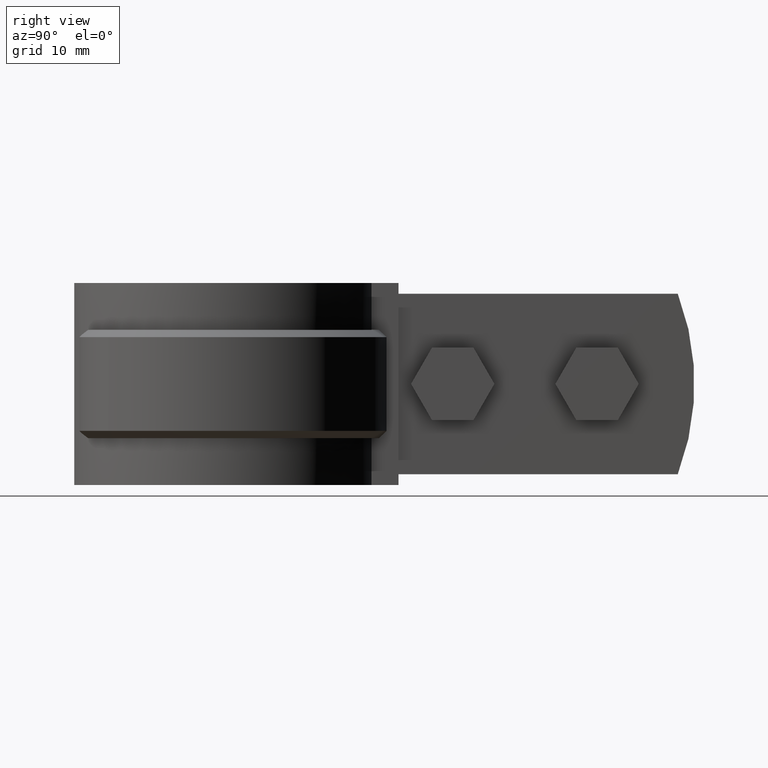
[diagram: clean part render]
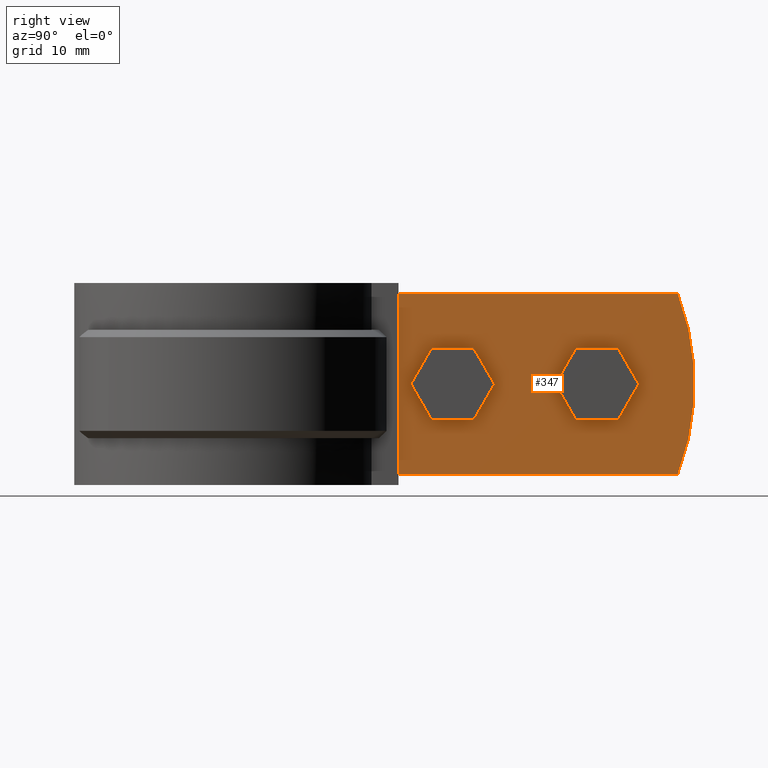
[diagram: same view with one face highlighted and labeled with its STEP entity id]
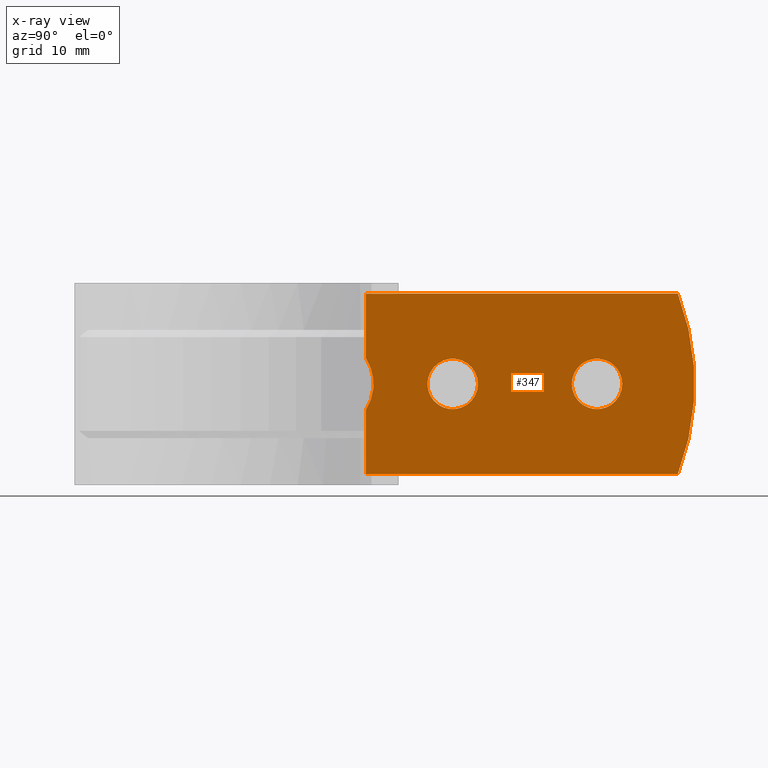
[diagram: x-ray of the same camera — body ghosted, the highlighted face saturated]
A machine part, right view. The second image highlights one B-rep face of the part: STEP entity #347.
The next image is the same camera in x-ray: the body ghosted, the highlighted face saturated — about 0% of this face is hidden behind the body in this view.
In plain terms, the highlighted planar face has unit normal (-1, 0, 0).
Its self-contained STEP definition (entity closure, byte-faithful):
#347 = ADVANCED_FACE( '', ( #577, #578, #579 ), #580, .F. );
#577 = FACE_BOUND( '', #1183, .T. );
#578 = FACE_BOUND( '', #1184, .T. );
#579 = FACE_OUTER_BOUND( '', #1185, .T. );
#580 = PLANE( '', #1186 );
#1183 = EDGE_LOOP( '', ( #2356 ) );
#1184 = EDGE_LOOP( '', ( #2357 ) );
#1185 = EDGE_LOOP( '', ( #2358, #2359, #2360, #2361, #2362, #2363 ) );
#1186 = AXIS2_PLACEMENT_3D( '', #2364, #2365, #2366 );
#2356 = ORIENTED_EDGE( '', *, *, #4100, .F. );
#2357 = ORIENTED_EDGE( '', *, *, #4101, .F. );
#2358 = ORIENTED_EDGE( '', *, *, #4016, .F. );
#2359 = ORIENTED_EDGE( '', *, *, #4099, .T. );
#2360 = ORIENTED_EDGE( '', *, *, #4102, .T. );
#2361 = ORIENTED_EDGE( '', *, *, #4103, .F. );
#2362 = ORIENTED_EDGE( '', *, *, #3996, .F. );
#2363 = ORIENTED_EDGE( '', *, *, #4079, .T. );
#2364 = CARTESIAN_POINT( '', ( 5.10000000000000, 19.4422220952236, 0.000000000000000 ) );
#2365 = DIRECTION( '', ( -1.00000000000000, 6.12303176911189E-017, 0.000000000000000 ) );
#2366 = DIRECTION( '', ( 6.12303176911189E-017, 1.00000000000000, 0.000000000000000 ) );
#3996 = EDGE_CURVE( '', #4520, #4522, #4523, .T. );
#4016 = EDGE_CURVE( '', #4557, #4551, #4559, .T. );
#4079 = EDGE_CURVE( '', #4520, #4551, #4665, .T. );
#4099 = EDGE_CURVE( '', #4557, #4693, #4695, .T. );
#4100 = EDGE_CURVE( '', #4696, #4696, #4697, .F. );
#4101 = EDGE_CURVE( '', #4698, #4698, #4699, .F. );
#4102 = EDGE_CURVE( '', #4693, #4700, #4701, .T. );
#4103 = EDGE_CURVE( '', #4522, #4700, #4702, .T. );
#4520 = VERTEX_POINT( '', #5493 );
#4522 = VERTEX_POINT( '', #5495 );
#4523 = LINE( '', #5496, #5497 );
#4551 = VERTEX_POINT( '', #5600 );
#4557 = VERTEX_POINT( '', #5665 );
#4559 = B_SPLINE_CURVE_WITH_KNOTS( '', 3, ( #5680, #5681, #5682, #5683, #5684, #5685, #5686, #5687, #5688, #5689, #5690, #5691, #5692, #5693, #5694, #5695 ), .UNSPECIFIED., .F., .F., ( 4, 2, 2, 2, 2, 2, 2, 4 ), ( 1.55158384577955E-017, 0.00184726520239941, 0.00277089780359910, 0.00369453040479880, 0.00461816300599849, 0.00554179560719819, 0.00646542820839788, 0.00738906080959758 ), .UNSPECIFIED. );
#4665 = LINE( '', #6264, #6265 );
#4693 = VERTEX_POINT( '', #6328 );
#4695 = LINE( '', #6330, #6331 );
#4696 = VERTEX_POINT( '', #6332 );
#4697 = CIRCLE( '', #6333, 3.50000000000000 );
#4698 = VERTEX_POINT( '', #6334 );
#4699 = CIRCLE( '', #6335, 3.50000000000000 );
#4700 = VERTEX_POINT( '', #6336 );
#4701 = LINE( '', #6337, #6338 );
#4702 = CIRCLE( '', #6339, 35.0000000000000 );
#5493 = CARTESIAN_POINT( '', ( 5.10000000000000, 19.4422220952236, 0.000000000000000 ) );
#5495 = CARTESIAN_POINT( '', ( 5.09999999999998, 62.6361005214813, 0.000000000000000 ) );
#5496 = CARTESIAN_POINT( '', ( 5.10000000000000, 19.4422220952236, 0.000000000000000 ) );
#5497 = VECTOR( '', #8063, 1000.00000000000 );
#5600 = CARTESIAN_POINT( '', ( 5.10000000000000, 19.4422220952236, -8.96967133656900 ) );
#5665 = CARTESIAN_POINT( '', ( 5.10000000000000, 19.4422220952236, -16.0303286634310 ) );
#5680 = CARTESIAN_POINT( '', ( 5.10000000000000, 19.4422220952236, -16.0303286634310 ) );
#5681 = CARTESIAN_POINT( '', ( 5.10000000000000, 19.7801053416469, -15.5013357464435 ) );
#5682 = CARTESIAN_POINT( '', ( 5.10000000000004, 20.0328027913763, -14.9390013586114 ) );
#5683 = CARTESIAN_POINT( '', ( 5.10000000000004, 20.2940795166056, -14.0494051599813 ) );
#5684 = CARTESIAN_POINT( '', ( 5.10000000000000, 20.3614603303200, -13.7424787248678 ) );
#5685 = CARTESIAN_POINT( '', ( 5.10000000000000, 20.4512930233971, -13.1249243719470 ) );
#5686 = CARTESIAN_POINT( '', ( 5.09999999999998, 20.4739241329096, -12.8159474315860 ) );
#5687 = CARTESIAN_POINT( '', ( 5.09999999999998, 20.4745795553676, -12.1975936974691 ) );
#5688 = CARTESIAN_POINT( '', ( 5.10000000000000, 20.4525929326976, -11.8882168056868 ) );
#5689 = CARTESIAN_POINT( '', ( 5.10000000000000, 20.3637266687302, -11.2690606030454 ) );
#5690 = CARTESIAN_POINT( '', ( 5.10000000000001, 20.2971590065117, -10.9631409781845 ) );
#5691 = CARTESIAN_POINT( '', ( 5.10000000000001, 20.1236782689653, -10.3684305159894 ) );
#5692 = CARTESIAN_POINT( '', ( 5.09999999999999, 20.0165393108588, -10.0780053806238 ) );
#5693 = CARTESIAN_POINT( '', ( 5.09999999999999, 19.7606431259462, -9.51129425361357 ) );
#5694 = CARTESIAN_POINT( '', ( 5.10000000000000, 19.6111260462182, -9.23410881511576 ) );
#5695 = CARTESIAN_POINT( '', ( 5.10000000000000, 19.4422220952235, -8.96967133656902 ) );
#6264 = CARTESIAN_POINT( '', ( 5.10000000000000, 19.4422220952236, 0.000000000000000 ) );
#6265 = VECTOR( '', #8134, 1000.00000000000 );
#6328 = CARTESIAN_POINT( '', ( 5.10000000000000, 19.4422220952236, -25.0000000000000 ) );
#6330 = CARTESIAN_POINT( '', ( 5.10000000000000, 19.4422220952236, 0.000000000000000 ) );
#6331 = VECTOR( '', #8169, 1000.00000000000 );
#6332 = CARTESIAN_POINT( '', ( 5.10000000000000, 47.9443584449264, -12.5000000000000 ) );
#6333 = AXIS2_PLACEMENT_3D( '', #8170, #8171, #8172 );
#6334 = CARTESIAN_POINT( '', ( 5.10000000000000, 27.9443584449264, -12.5000000000000 ) );
#6335 = AXIS2_PLACEMENT_3D( '', #8173, #8174, #8175 );
#6336 = CARTESIAN_POINT( '', ( 5.09999999999998, 62.6361005214814, -25.0000000000000 ) );
#6337 = CARTESIAN_POINT( '', ( 5.10000000000000, 19.4422220952236, -25.0000000000000 ) );
#6338 = VECTOR( '', #8176, 1000.00000000000 );
#6339 = AXIS2_PLACEMENT_3D( '', #8177, #8178, #8179 );
#8063 = DIRECTION( '', ( 6.12303176911189E-017, 1.00000000000000, 0.000000000000000 ) );
#8134 = DIRECTION( '', ( 0.000000000000000, 0.000000000000000, -1.00000000000000 ) );
#8169 = DIRECTION( '', ( 0.000000000000000, 0.000000000000000, -1.00000000000000 ) );
#8170 = CARTESIAN_POINT( '', ( 5.10000000000000, 51.4443584449264, -12.5000000000000 ) );
#8171 = DIRECTION( '', ( -1.00000000000000, 6.12303176911189E-017, 0.000000000000000 ) );
#8172 = DIRECTION( '', ( -6.12303176911189E-017, -1.00000000000000, 0.000000000000000 ) );
#8173 = CARTESIAN_POINT( '', ( 5.10000000000000, 31.4443584449264, -12.5000000000000 ) );
#8174 = DIRECTION( '', ( -1.00000000000000, 6.12303176911189E-017, 0.000000000000000 ) );
#8175 = DIRECTION( '', ( -6.12303176911189E-017, -1.00000000000000, 0.000000000000000 ) );
#8176 = DIRECTION( '', ( 6.12303176911189E-017, 1.00000000000000, 0.000000000000000 ) );
#8177 = CARTESIAN_POINT( '', ( 5.10000000000001, 29.9443584449263, -12.5000000000000 ) );
#8178 = DIRECTION( '', ( -1.00000000000000, 6.12303176911189E-017, 0.000000000000000 ) );
#8179 = DIRECTION( '', ( -6.12303176911189E-017, -1.00000000000000, 0.000000000000000 ) );